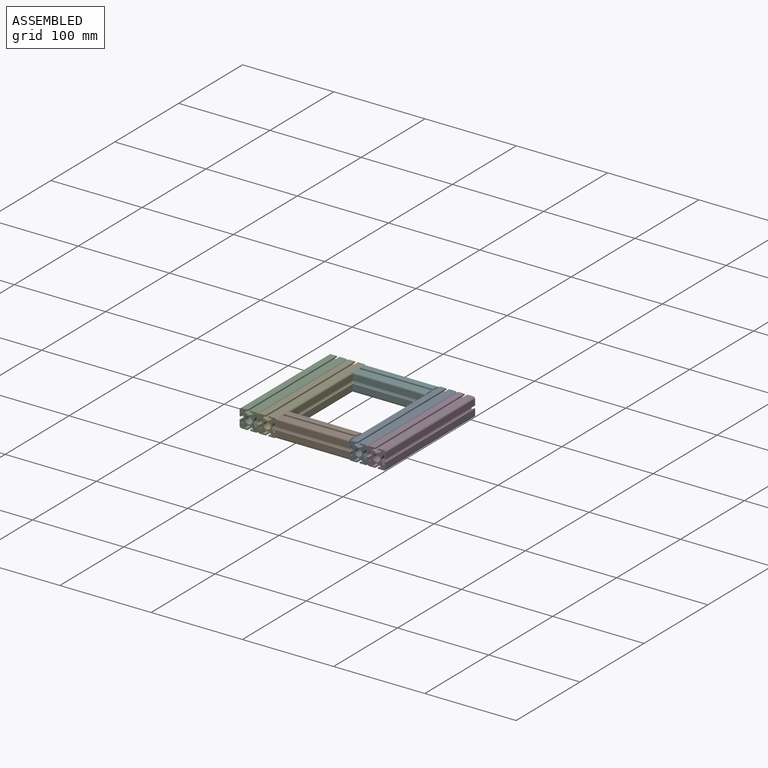
[diagram: assembled view]
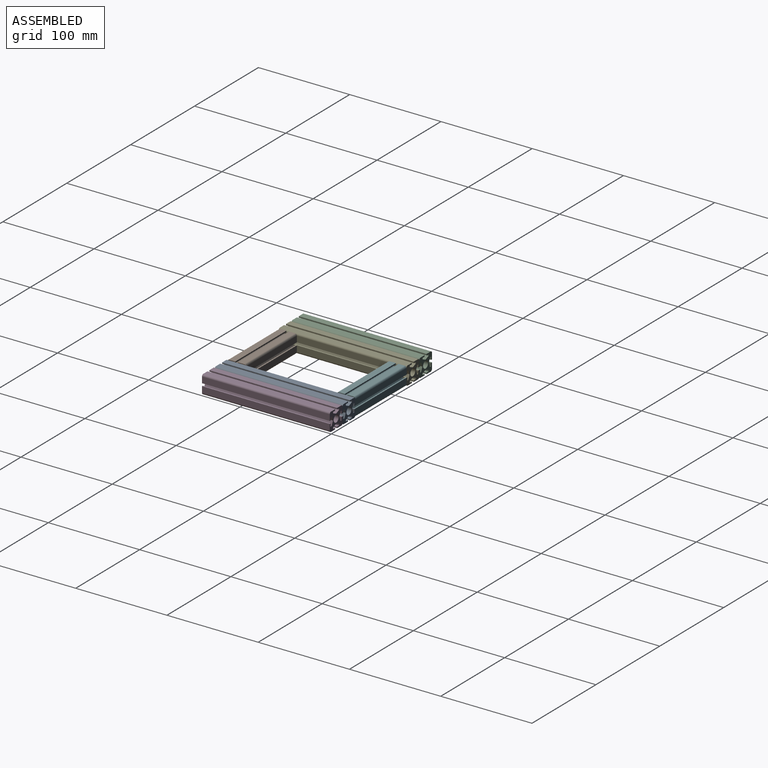
[diagram: assembled view, second angle]
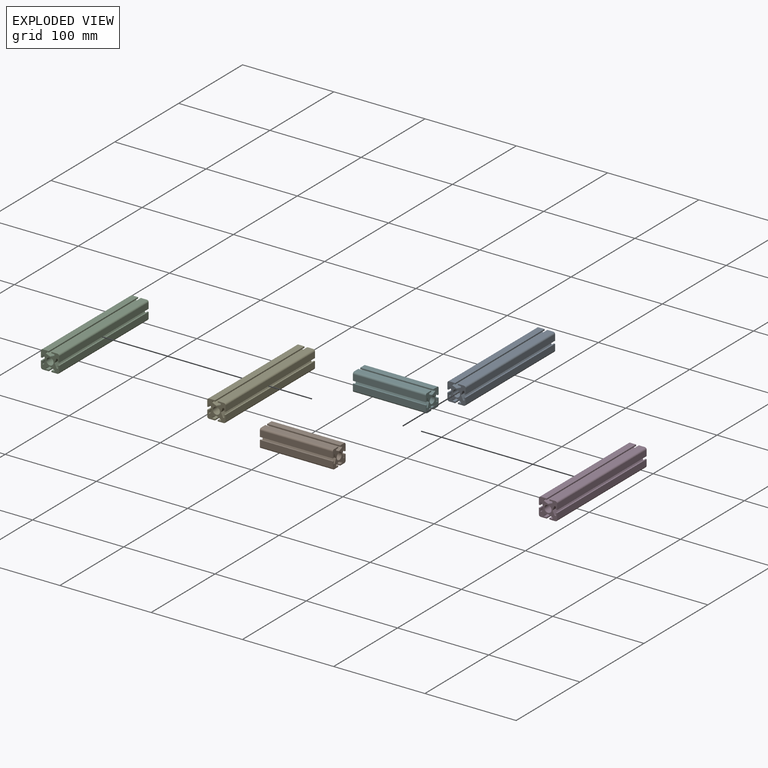
[diagram: exploded view]
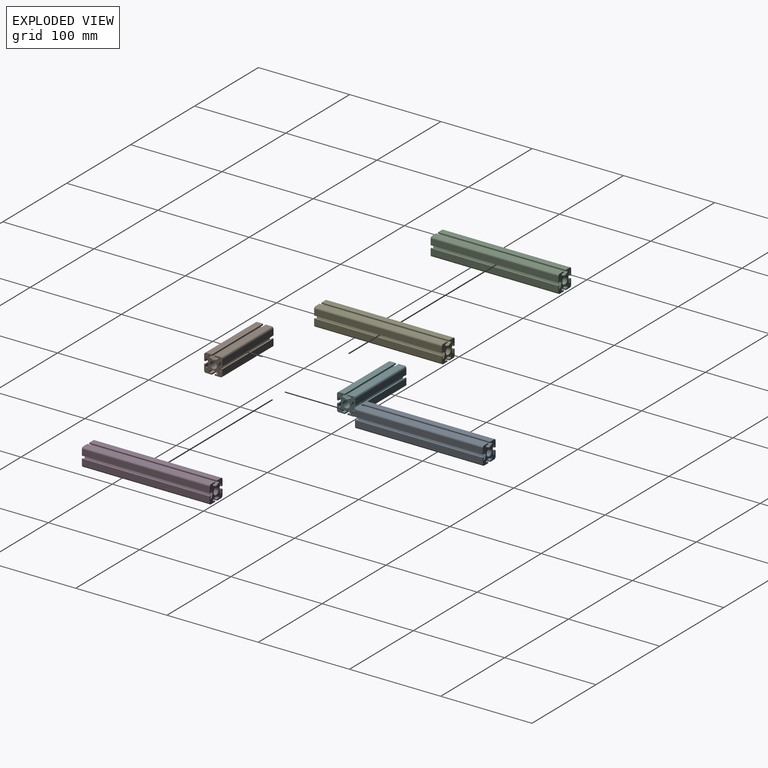
[diagram: exploded view, second angle]
ASSEMBLY  parts=6 mates=15
PART A: 47 faces, bbox 20x140x20 mm
  f0: plane 140x1.42mm, normal (1,0,0), area 198.8mm2, adj f1,f44,f45,f46
  f1: plane 140x6.51mm, normal (0,0,1), area 910.7mm2, adj f0,f2,f45,f46
  f2: cylinder r=2mm len=140mm, axis (0,1,0), area 439.8mm2, adj f1,f3,f45,f46
  f3: plane 140x6.51mm, normal (-1,0,0), area 910.7mm2, adj f2,f4,f45,f46
  f4: plane 140x1.42mm, normal (0,0,-1), area 198.8mm2, adj f3,f5,f45,f46
  f5: plane 140x3.23mm, normal (1,0,0), area 451.5mm2, adj f4,f6,f45,f46
  f6: plane 140x1.59mm, normal (0,0,-1), area 222.8mm2, adj f5,f7,f45,f46
  f7: plane 140x4.72mm, normal (-0.92,0,-0.39), area 717.1mm2, adj f6,f8,f45,f46
  f8: plane 140x4.72mm, normal (-0.92,0,0.39), area 717.1mm2, adj f7,f9,f45,f46
  f9: plane 140x1.59mm, normal (0,0,1), area 222.8mm2, adj f8,f10,f45,f46
  f10: plane 140x3.23mm, normal (1,0,0), area 451.5mm2, adj f9,f11,f45,f46
  f11: plane 140x1.42mm, normal (0,0,1), area 198.8mm2, adj f10,f12,f45,f46
  f12: plane 140x6.51mm, normal (-1,0,0), area 910.7mm2, adj f11,f13,f45,f46
  f13: cylinder r=2mm len=140mm, axis (0,1,0), area 439.8mm2, adj f12,f14,f45,f46
  f14: plane 140x6.51mm, normal (0,0,-1), area 910.7mm2, adj f13,f15,f45,f46
  f15: plane 140x1.42mm, normal (1,0,0), area 198.8mm2, adj f14,f16,f45,f46
  f16: plane 140x3.23mm, normal (0,0,1), area 451.5mm2, adj f15,f17,f45,f46
  f17: plane 140x1.59mm, normal (1,0,0), area 222.8mm2, adj f16,f18,f45,f46
  f18: plane 140x4.72mm, normal (0.39,0,-0.92), area 717.1mm2, adj f17,f19,f45,f46
  f19: plane 140x4.72mm, normal (-0.39,0,-0.92), area 717.1mm2, adj f18,f20,f45,f46
  f20: plane 140x1.59mm, normal (-1,0,0), area 222.8mm2, adj f19,f21,f45,f46
  f21: plane 140x3.23mm, normal (0,0,1), area 451.5mm2, adj f20,f22,f45,f46
  f22: plane 140x1.42mm, normal (-1,0,0), area 198.8mm2, adj f21,f23,f45,f46
  f23: plane 140x6.51mm, normal (0,0,-1), area 910.7mm2, adj f22,f24,f45,f46
  f24: cylinder r=2mm len=140mm, axis (0,1,0), area 439.8mm2, adj f23,f25,f45,f46
  f25: plane 140x6.51mm, normal (1,0,0), area 910.7mm2, adj f24,f26,f45,f46
  f26: plane 140x1.42mm, normal (0,0,1), area 198.8mm2, adj f25,f27,f45,f46
  f27: plane 140x3.23mm, normal (-1,0,0), area 451.5mm2, adj f26,f28,f45,f46
  f28: plane 140x1.59mm, normal (0,0,1), area 222.8mm2, adj f27,f29,f45,f46
  f29: plane 140x4.72mm, normal (0.92,0,0.39), area 717.1mm2, adj f28,f30,f45,f46
  f30: plane 140x4.72mm, normal (0.92,0,-0.39), area 717.1mm2, adj f29,f31,f45,f46
  f31: plane 140x1.59mm, normal (0,0,-1), area 222.8mm2, adj f30,f32,f45,f46
  f32: plane 140x3.23mm, normal (-1,0,0), area 451.5mm2, adj f31,f33,f45,f46
  f33: plane 140x1.42mm, normal (0,0,-1), area 198.8mm2, adj f32,f34,f45,f46
  f34: plane 140x6.51mm, normal (1,0,0), area 910.7mm2, adj f33,f35,f45,f46
  f35: cylinder r=2mm len=140mm, axis (0,1,0), area 439.8mm2, adj f34,f36,f45,f46
  f36: plane 140x6.51mm, normal (0,0,1), area 910.7mm2, adj f35,f37,f45,f46
  f37: plane 140x1.42mm, normal (-1,0,0), area 198.8mm2, adj f36,f38,f45,f46
  f38: plane 140x3.23mm, normal (0,0,-1), area 451.5mm2, adj f37,f39,f45,f46
  f39: plane 140x1.59mm, normal (-1,0,0), area 222.8mm2, adj f38,f40,f45,f46
  f40: plane 140x4.72mm, normal (-0.39,0,0.92), area 717.1mm2, adj f39,f41,f45,f46
  f41: plane 140x4.72mm, normal (0.39,0,0.92), area 717.1mm2, adj f40,f42,f45,f46
  f42: plane 140x1.59mm, normal (1,0,0), area 222.8mm2, adj f41,f44,f45,f46
  f43: cylinder r=3.86mm len=140mm, axis (0,1,0), area 3397.4mm2, adj f45,f46
  f44: plane 140x3.23mm, normal (0,0,-1), area 451.5mm2, adj f0,f42,f45,f46
  f45: plane 20x20mm, normal (0,-1,0), area 235.1mm2, adj f0,f1,f2,f3,f4,f5,f6,f7
  f46: plane 20x20mm, normal (0,1,0), area 235.1mm2, adj f0,f1,f2,f3,f4,f5,f6,f7
PART B: 47 faces, bbox 20x80x20 mm
  f0: plane 80x1.42mm, normal (1,0,0), area 113.6mm2, adj f1,f44,f45,f46
  f1: plane 80x6.51mm, normal (0,0,1), area 520.4mm2, adj f0,f2,f45,f46
  f2: cylinder r=2mm len=80mm, axis (0,1,0), area 251.3mm2, adj f1,f3,f45,f46
  f3: plane 80x6.51mm, normal (-1,0,0), area 520.4mm2, adj f2,f4,f45,f46
  f4: plane 80x1.42mm, normal (0,0,-1), area 113.6mm2, adj f3,f5,f45,f46
  f5: plane 80x3.23mm, normal (1,0,0), area 258mm2, adj f4,f6,f45,f46
  f6: plane 80x1.59mm, normal (0,0,-1), area 127.3mm2, adj f5,f7,f45,f46
  f7: plane 80x4.72mm, normal (-0.92,0,-0.39), area 409.8mm2, adj f6,f8,f45,f46
  f8: plane 80x4.72mm, normal (-0.92,0,0.39), area 409.8mm2, adj f7,f9,f45,f46
  f9: plane 80x1.59mm, normal (0,0,1), area 127.3mm2, adj f8,f10,f45,f46
  f10: plane 80x3.23mm, normal (1,0,0), area 258mm2, adj f9,f11,f45,f46
  f11: plane 80x1.42mm, normal (0,0,1), area 113.6mm2, adj f10,f12,f45,f46
  f12: plane 80x6.51mm, normal (-1,0,0), area 520.4mm2, adj f11,f13,f45,f46
  f13: cylinder r=2mm len=80mm, axis (0,1,0), area 251.3mm2, adj f12,f14,f45,f46
  f14: plane 80x6.51mm, normal (0,0,-1), area 520.4mm2, adj f13,f15,f45,f46
  f15: plane 80x1.42mm, normal (1,0,0), area 113.6mm2, adj f14,f16,f45,f46
  f16: plane 80x3.23mm, normal (0,0,1), area 258mm2, adj f15,f17,f45,f46
  f17: plane 80x1.59mm, normal (1,0,0), area 127.3mm2, adj f16,f18,f45,f46
  f18: plane 80x4.72mm, normal (0.39,0,-0.92), area 409.8mm2, adj f17,f19,f45,f46
  f19: plane 80x4.72mm, normal (-0.39,0,-0.92), area 409.8mm2, adj f18,f20,f45,f46
  f20: plane 80x1.59mm, normal (-1,0,0), area 127.3mm2, adj f19,f21,f45,f46
  f21: plane 80x3.23mm, normal (0,0,1), area 258mm2, adj f20,f22,f45,f46
  f22: plane 80x1.42mm, normal (-1,0,0), area 113.6mm2, adj f21,f23,f45,f46
  f23: plane 80x6.51mm, normal (0,0,-1), area 520.4mm2, adj f22,f24,f45,f46
  f24: cylinder r=2mm len=80mm, axis (0,1,0), area 251.3mm2, adj f23,f25,f45,f46
  f25: plane 80x6.51mm, normal (1,0,0), area 520.4mm2, adj f24,f26,f45,f46
  f26: plane 80x1.42mm, normal (0,0,1), area 113.6mm2, adj f25,f27,f45,f46
  f27: plane 80x3.23mm, normal (-1,0,0), area 258mm2, adj f26,f28,f45,f46
  f28: plane 80x1.59mm, normal (0,0,1), area 127.3mm2, adj f27,f29,f45,f46
  f29: plane 80x4.72mm, normal (0.92,0,0.39), area 409.8mm2, adj f28,f30,f45,f46
  f30: plane 80x4.72mm, normal (0.92,0,-0.39), area 409.8mm2, adj f29,f31,f45,f46
  f31: plane 80x1.59mm, normal (0,0,-1), area 127.3mm2, adj f30,f32,f45,f46
  f32: plane 80x3.23mm, normal (-1,0,0), area 258mm2, adj f31,f33,f45,f46
  f33: plane 80x1.42mm, normal (0,0,-1), area 113.6mm2, adj f32,f34,f45,f46
  f34: plane 80x6.51mm, normal (1,0,0), area 520.4mm2, adj f33,f35,f45,f46
  f35: cylinder r=2mm len=80mm, axis (0,1,0), area 251.3mm2, adj f34,f36,f45,f46
  f36: plane 80x6.51mm, normal (0,0,1), area 520.4mm2, adj f35,f37,f45,f46
  f37: plane 80x1.42mm, normal (-1,0,0), area 113.6mm2, adj f36,f38,f45,f46
  f38: plane 80x3.23mm, normal (0,0,-1), area 258mm2, adj f37,f39,f45,f46
  f39: plane 80x1.59mm, normal (-1,0,0), area 127.3mm2, adj f38,f40,f45,f46
  f40: plane 80x4.72mm, normal (-0.39,0,0.92), area 409.8mm2, adj f39,f41,f45,f46
  f41: plane 80x4.72mm, normal (0.39,0,0.92), area 409.8mm2, adj f40,f42,f45,f46
  f42: plane 80x1.59mm, normal (1,0,0), area 127.3mm2, adj f41,f44,f45,f46
  f43: cylinder r=3.86mm len=80mm, axis (0,1,0), area 1941.3mm2, adj f45,f46
  f44: plane 80x3.23mm, normal (0,0,-1), area 258mm2, adj f0,f42,f45,f46
  f45: plane 20x20mm, normal (0,-1,0), area 235.1mm2, adj f0,f1,f2,f3,f4,f5,f6,f7
  f46: plane 20x20mm, normal (0,1,0), area 235.1mm2, adj f0,f1,f2,f3,f4,f5,f6,f7
PART C: same geometry as A
PART D: same geometry as A
PART E: same geometry as A
PART F: same geometry as B
PLACE A t=(-25.88,1.23,0)mm
PLACE B rot(axis=(0.58,0.58,-0.58),120deg) t=(-35.88,-128.77,0)mm
PLACE C t=(-145.88,1.23,0)mm fixed
PLACE D t=(-5.88,1.23,0)mm
PLACE E t=(-125.88,1.23,0)mm
PLACE F rot(axis=(0.58,0.58,-0.58),120deg) t=(-35.88,-8.77,0)mm
MATE planar E.f45 <-> B.f1  axis (0,-1,0) through (-118.89,-138.77,-4.72)mm
MATE planar F.f14 <-> A.f46  axis (0,1,0) through (-75.88,1.23,4.75)mm
MATE planar A.f1 <-> F.f3  axis (0,0,1) through (-30.63,-68.77,10)mm
MATE planar E.f3 <-> C.f34  axis (-1,0,0) through (-135.88,-68.77,4.75)mm
MATE planar F.f45 <-> E.f25  axis (-1,0,0) through (-115.88,-17.35,4.72)mm
MATE planar E.f46 <-> F.f14  axis (0,1,0) through (-121.16,1.23,6.99)mm
MATE planar C.f43 <-> E.f45  axis (0,-1,0) through (-145.88,-138.77,0)mm
MATE planar D.f3 <-> A.f34  axis (-1,0,0) through (-15.88,-138.77,4.75)mm
MATE planar A.f45 <-> D.f45  axis (0,-1,0) through (-18.89,-138.77,4.72)mm
MATE planar A.f36 <-> D.f1  axis (0,0,1) through (-21.13,-68.77,10)mm
MATE planar B.f45 <-> E.f25  axis (-1,0,0) through (-115.88,-135.76,-4.72)mm
MATE planar B.f3 <-> E.f36  axis (0,0,1) through (-75.88,-133.52,10)mm
MATE planar B.f43 <-> A.f12  axis (1,0,0) through (-35.88,-128.77,0)mm
MATE planar F.f3 <-> E.f36  axis (0,0,1) through (-115.88,-13.52,10)mm
MATE planar E.f1 <-> C.f36  axis (0,0,1) through (-130.63,-68.77,10)mm
